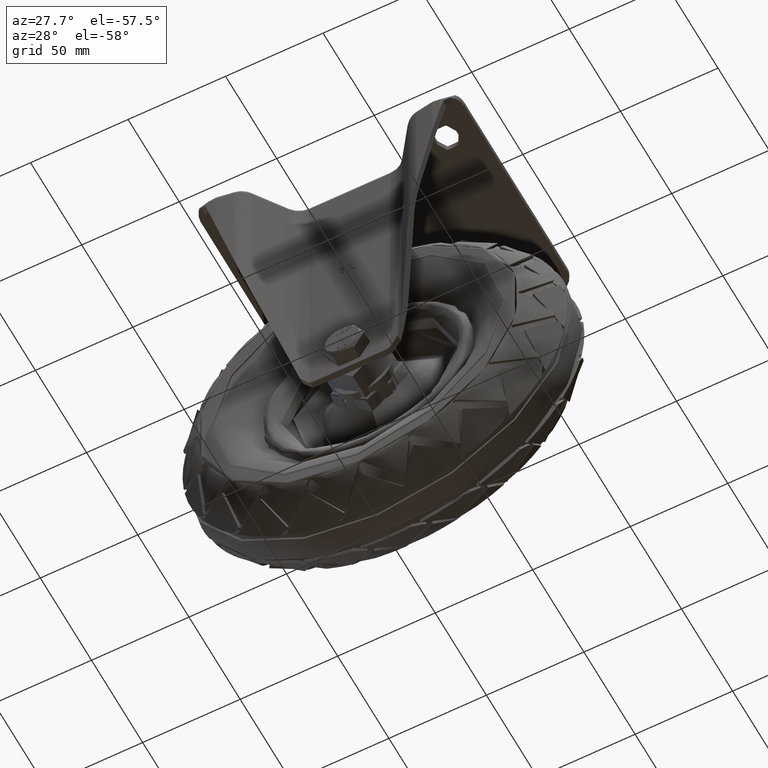
[diagram: clean part render]
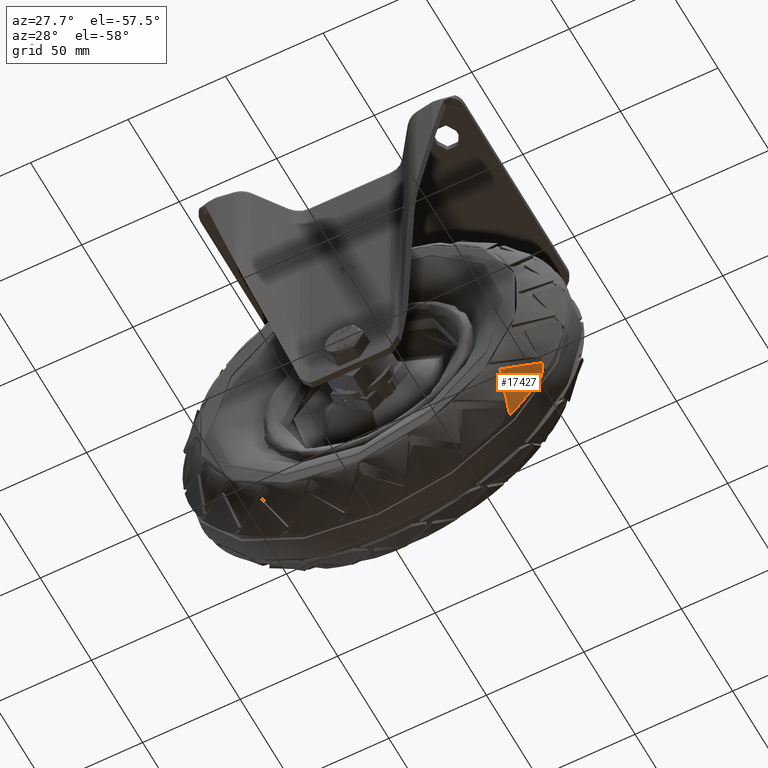
[diagram: same view with one face highlighted and labeled with its STEP entity id]
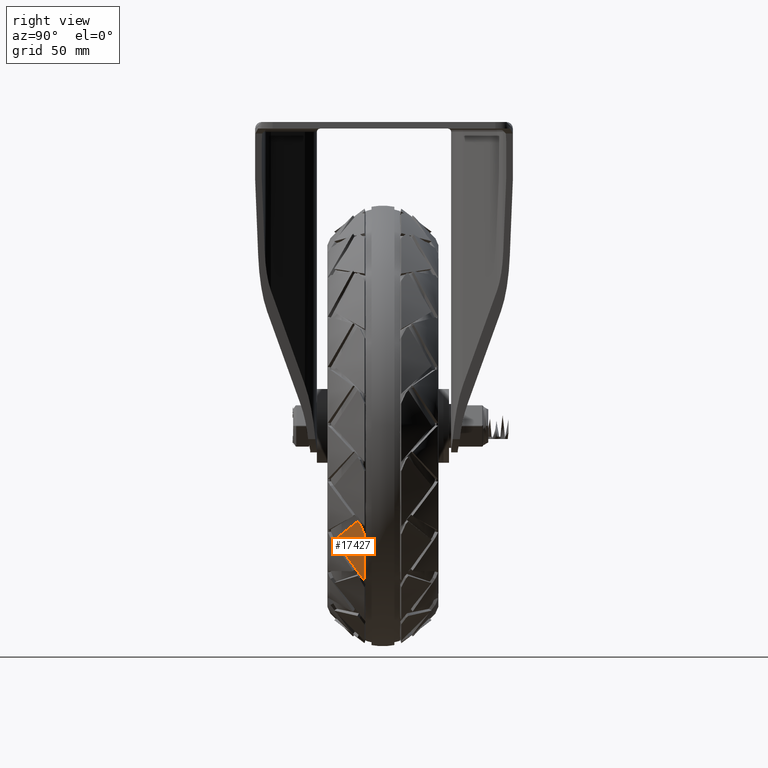
[diagram: same view with one face highlighted and labeled with its STEP entity id]
A machine part, auxiliary view. The second image highlights one B-rep face of the part: STEP entity #17427.
A second angle (right view) of the same face is appended — the face is thin or edge-on in the first view.
In plain terms, the highlighted toroidal blend (fillet) surface has major radius 73.3659 mm and minor (blend) radius 26.63 mm.
Its self-contained STEP definition (entity closure, byte-faithful):
#399=TOROIDAL_SURFACE('',#19071,73.3659392882218,26.63);
#1720=FACE_OUTER_BOUND('',#2828,.T.);
#2828=EDGE_LOOP('',(#14561,#14562,#14563,#14564,#14565));
#3852=CIRCLE('',#19070,98.6425562644157);
#6604=B_SPLINE_CURVE_WITH_KNOTS('',3,(#38128,#38129,#38130,#38131,#38132,
#38133,#38134,#38135,#38136,#38137,#38138,#38139,#38140,#38141,#38142,#38143,
#38144,#38145,#38146,#38147,#38148,#38149,#38150,#38151),.UNSPECIFIED.,
 .F.,.F.,(4,2,2,2,2,2,2,2,2,2,2,4),(3.94438332200271E-6,0.109884378706265,
0.221672486709273,0.448623548116157,0.599550625933391,0.796994499673166,
1.04870181257956,1.17647133042496,1.4059889642231,1.7572602739288,1.93113201365879,
2.10160089639492),.UNSPECIFIED.);
#6605=B_SPLINE_CURVE_WITH_KNOTS('',3,(#38193,#38194,#38195,#38196,#38197,
#38198,#38199,#38200,#38201,#38202,#38203,#38204,#38205,#38206,#38207,#38208,
#38209,#38210,#38211,#38212,#38213,#38214),.UNSPECIFIED.,.F.,.F.,(4,2,2,
2,2,2,2,2,2,2,4),(0.,0.490248112301262,0.963937431476982,1.09682286227345,
1.24746964449984,1.39708549368233,1.52719825097332,1.75460461993429,1.92431175983667,
2.17722390089274,2.42958748642166),.UNSPECIFIED.);
#6606=B_SPLINE_CURVE_WITH_KNOTS('',3,(#38241,#38242,#38243,#38244,#38245,
#38246,#38247,#38248,#38249,#38250),.UNSPECIFIED.,.F.,.F.,(4,2,2,2,4),(4.92843978637827E-5,
0.144962886667807,0.288387553015711,0.431651686960815,0.574387539021509),
 .UNSPECIFIED.);
#6607=B_SPLINE_CURVE_WITH_KNOTS('',3,(#38252,#38253,#38254,#38255,#38256,
#38257),.UNSPECIFIED.,.F.,.F.,(4,2,4),(1.85348865220056E-6,0.0801934337308566,
0.160390193047951),.UNSPECIFIED.);
#8156=VERTEX_POINT('',#38120);
#8157=VERTEX_POINT('',#38127);
#8158=VERTEX_POINT('',#38191);
#8159=VERTEX_POINT('',#38216);
#8160=VERTEX_POINT('',#38239);
#10426=EDGE_CURVE('',#8157,#8156,#6604,.F.);
#10429=EDGE_CURVE('',#8156,#8158,#6605,.F.);
#10431=EDGE_CURVE('',#8158,#8159,#3852,.F.);
#10433=EDGE_CURVE('',#8159,#8160,#6606,.F.);
#10434=EDGE_CURVE('',#8160,#8157,#6607,.F.);
#14561=ORIENTED_EDGE('',*,*,#10434,.T.);
#14562=ORIENTED_EDGE('',*,*,#10426,.T.);
#14563=ORIENTED_EDGE('',*,*,#10429,.T.);
#14564=ORIENTED_EDGE('',*,*,#10431,.T.);
#14565=ORIENTED_EDGE('',*,*,#10433,.T.);
#17427=ADVANCED_FACE('',(#1720),#399,.T.);
#19070=AXIS2_PLACEMENT_3D('',#38218,#22171,#22172);
#19071=AXIS2_PLACEMENT_3D('',#38251,#22174,#22175);
#22171=DIRECTION('center_axis',(2.52806412696791E-17,1.,3.27970078813609E-15));
#22172=DIRECTION('ref_axis',(0.,-3.27970078813609E-15,1.));
#22174=DIRECTION('center_axis',(0.,-1.,-3.22268020717889E-15));
#22175=DIRECTION('ref_axis',(0.,-3.22269197108504E-15,1.));
#38120=CARTESIAN_POINT('',(71.3075639721934,-22.1308673544464,-51.8079783080607));
#38127=CARTESIAN_POINT('',(87.1977772323648,-11.5356850183586,-43.2982021168844));
#38128=CARTESIAN_POINT('Ctrl Pts',(71.3075640596403,-22.130867333419,-51.8079782413436));
#38129=CARTESIAN_POINT('Ctrl Pts',(71.6348202053989,-21.9757090345986,-51.7533741184773));
#38130=CARTESIAN_POINT('Ctrl Pts',(71.9592830101949,-21.8185033375855,-51.6927909544844));
#38131=CARTESIAN_POINT('Ctrl Pts',(72.6131670631266,-21.4950650177804,-51.5577305353446));
#38132=CARTESIAN_POINT('Ctrl Pts',(72.9408980256097,-21.3295049904072,-51.48339559291));
#38133=CARTESIAN_POINT('Ctrl Pts',(73.9253045346476,-20.8219478178615,-51.2407930997113));
#38134=CARTESIAN_POINT('Ctrl Pts',(74.5748426353916,-20.4729686873423,-51.0543821361968));
#38135=CARTESIAN_POINT('Ctrl Pts',(75.6413273886183,-19.8779767690857,-50.7048534587169));
#38136=CARTESIAN_POINT('Ctrl Pts',(76.0628903454039,-19.6368116485257,-50.5550025215975));
#38137=CARTESIAN_POINT('Ctrl Pts',(77.0224131357245,-19.074221652888,-50.1882817766602));
#38138=CARTESIAN_POINT('Ctrl Pts',(77.5583839335694,-18.7496637974439,-49.9641659274251));
#38139=CARTESIAN_POINT('Ctrl Pts',(78.7536889687851,-18.0033895255538,-49.4214665186839));
#38140=CARTESIAN_POINT('Ctrl Pts',(79.407760040405,-17.5788647599597,-49.0929821507846));
#38141=CARTESIAN_POINT('Ctrl Pts',(80.3663796640189,-16.9330579628922,-48.5666624270386));
#38142=CARTESIAN_POINT('Ctrl Pts',(80.6850732679645,-16.7142160475115,-48.3838371887432));
#38143=CARTESIAN_POINT('Ctrl Pts',(81.5679397900783,-16.0966130987503,-47.8551247471105));
#38144=CARTESIAN_POINT('Ctrl Pts',(82.1228363895885,-15.6950467804381,-47.4969671359362));
#38145=CARTESIAN_POINT('Ctrl Pts',(83.4896612089373,-14.6720438909353,-46.5514550290789));
#38146=CARTESIAN_POINT('Ctrl Pts',(84.2821090081726,-14.0471611148507,-45.9433504569079));
#38147=CARTESIAN_POINT('Ctrl Pts',(85.4247241152954,-13.0996716654831,-44.9760765635712));
#38148=CARTESIAN_POINT('Ctrl Pts',(85.7951306433318,-12.7844596599099,-44.647165821875));
#38149=CARTESIAN_POINT('Ctrl Pts',(86.5118376829318,-12.1584999044183,-43.9806367180541));
#38150=CARTESIAN_POINT('Ctrl Pts',(86.8588892481232,-11.8474192923818,-43.6429232574316));
#38151=CARTESIAN_POINT('Ctrl Pts',(87.1977511399773,-11.5357845381067,-43.2981468360395));
#38191=CARTESIAN_POINT('',(69.1734923761828,-8.35712869176629,-70.3234090389578));
#38193=CARTESIAN_POINT('Ctrl Pts',(69.1734923761829,-8.35712869176634,-70.3234090389578));
#38194=CARTESIAN_POINT('Ctrl Pts',(70.0559488780972,-9.0479417575313,-69.1340697436125));
#38195=CARTESIAN_POINT('Ctrl Pts',(70.8282520148599,-9.82921278615508,-67.9219794981096));
#38196=CARTESIAN_POINT('Ctrl Pts',(72.079308424543,-11.5178901832062,-65.4937344628345));
#38197=CARTESIAN_POINT('Ctrl Pts',(72.5622762813907,-12.4138330277105,-64.288353378395));
#38198=CARTESIAN_POINT('Ctrl Pts',(72.9867238615097,-13.6233522609583,-62.7232121933052));
#38199=CARTESIAN_POINT('Ctrl Pts',(73.0676530011297,-13.8916984242021,-62.3794706889092));
#38200=CARTESIAN_POINT('Ctrl Pts',(73.2134688691448,-14.4695127101169,-61.6452464006319));
#38201=CARTESIAN_POINT('Ctrl Pts',(73.2746005269905,-14.7790357635048,-61.2555172261801));
#38202=CARTESIAN_POINT('Ctrl Pts',(73.3636594550206,-15.4003490648766,-60.4776242196337));
#38203=CARTESIAN_POINT('Ctrl Pts',(73.3917133680259,-15.7117214319696,-60.0899829689342));
#38204=CARTESIAN_POINT('Ctrl Pts',(73.4131551260106,-16.2955481104693,-59.3648843033541));
#38205=CARTESIAN_POINT('Ctrl Pts',(73.4105743141912,-16.567495746381,-59.0278291871265));
#38206=CARTESIAN_POINT('Ctrl Pts',(73.368724700531,-17.3141172459054,-58.1019884053196));
#38207=CARTESIAN_POINT('Ctrl Pts',(73.3036284165124,-17.7854542446693,-57.5171249722192));
#38208=CARTESIAN_POINT('Ctrl Pts',(73.1234621984388,-18.5998820825006,-56.4970113269137));
#38209=CARTESIAN_POINT('Ctrl Pts',(73.0253150639908,-18.9445259646718,-56.0623026873211));
#38210=CARTESIAN_POINT('Ctrl Pts',(72.7282595954907,-19.7914360436006,-54.9816220980831));
#38211=CARTESIAN_POINT('Ctrl Pts',(72.5045224780983,-20.2856220405642,-54.339595125168));
#38212=CARTESIAN_POINT('Ctrl Pts',(71.9691689238844,-21.2387468093018,-53.0646030613527));
#38213=CARTESIAN_POINT('Ctrl Pts',(71.658524579053,-21.6963263369305,-52.433482808079));
#38214=CARTESIAN_POINT('Ctrl Pts',(71.3075639685852,-22.1308673152915,-51.8079784129153));
#38216=CARTESIAN_POINT('',(85.4315696668782,-8.35712869176636,-49.3132924334984));
#38218=CARTESIAN_POINT('Origin',(-2.1188968271993E-16,-8.35712869176651,
1.11289067489786E-13));
#38239=CARTESIAN_POINT('',(87.1324502640584,-10.4761645721128,-44.5001789801979));
#38241=CARTESIAN_POINT('Ctrl Pts',(87.1325562408595,-10.4760472294057,-44.5000821725024));
#38242=CARTESIAN_POINT('Ctrl Pts',(87.1042218597539,-10.1542070340214,-44.8591735716994));
#38243=CARTESIAN_POINT('Ctrl Pts',(87.0438161431752,-9.85934646949313,-45.2353715856481));
#38244=CARTESIAN_POINT('Ctrl Pts',(86.8629730949659,-9.33877059965982,-46.0141610312799));
#38245=CARTESIAN_POINT('Ctrl Pts',(86.742909498344,-9.11272680590606,-46.4166063458701));
#38246=CARTESIAN_POINT('Ctrl Pts',(86.4485909629191,-8.74243206274687,-47.2387271320377));
#38247=CARTESIAN_POINT('Ctrl Pts',(86.2760844325122,-8.6001709750292,-47.6539100896979));
#38248=CARTESIAN_POINT('Ctrl Pts',(85.884291619812,-8.40715498693227,-48.4892826512585));
#38249=CARTESIAN_POINT('Ctrl Pts',(85.6667629895741,-8.35712869176637,-48.9058376937816));
#38250=CARTESIAN_POINT('Ctrl Pts',(85.4315696668783,-8.35712869176637,-49.3132924334984));
#38251=CARTESIAN_POINT('Origin',(0.,0.0243708303229219,1.38777878078145E-13));
#38252=CARTESIAN_POINT('Ctrl Pts',(87.1977521920544,-11.5357464389991,-43.2981859973434));
#38253=CARTESIAN_POINT('Ctrl Pts',(87.1916745963328,-11.3606871947221,-43.5001004094842));
#38254=CARTESIAN_POINT('Ctrl Pts',(87.1831908346097,-11.1848295119679,-43.7012494766));
#38255=CARTESIAN_POINT('Ctrl Pts',(87.1614181276202,-10.8315851998353,-44.1019640213731));
#38256=CARTESIAN_POINT('Ctrl Pts',(87.1481265207193,-10.6542111451496,-44.3015203604013));
#38257=CARTESIAN_POINT('Ctrl Pts',(87.1324508774433,-10.4761638937412,-44.5001784197561));